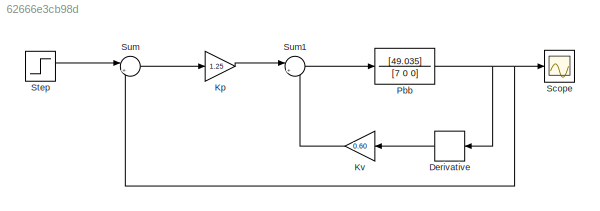
MODEL slx_62666e3cb98d
KIND model
CONFIG AbsTol = auto
CONFIG EnableMultiTasking = off
CONFIG FixedStep = auto
CONFIG MaxStep = auto
CONFIG MinStep = auto
CONFIG RelTol = 1e-3
CONFIG SampleTimeConstraint = Unconstrained
CONFIG SolverName = VariableStepAuto
CONFIG StartTime = 0.0
CONFIG StopTime = 10.0
BLOCK [Derivative] Derivative
BLOCK [Gain] Kp
  Gain = 1.25
BLOCK [Gain] Kv
  Gain = 0.60
BLOCK [TransferFcn] Pbb
  Denominator = [7 0 0]
  Numerator = [49.035]
BLOCK [Scope] Scope
  Floating = off
  NumInputPorts = 1
  Ports = [1]
  ScopeSpecificationString = Simulink.scopes.TimeScopeBlockCfg('CurrentConfiguration', extmgr.ConfigurationSet(extmgr.Configuration('Core','General UI',true),extmgr.Configuration('Core','Source UI',true),extmgr.Configuration('Sources','WiredSimulink',true),extmgr.Configuration('Visuals','Time Domain',true,'SerializedDisplays',{struct('MinYLimReal','-0.12632','MaxYLimReal','1.13692','YLabelReal','','MinYLimMag','0.00000','MaxY...<+1349ch>
BLOCK [Step] Step
  SampleTime = 0
BLOCK [Sum] Sum
  Inputs = |+-
  Ports = [2, 1]
BLOCK [Sum] Sum1
  Inputs = |+-
  Ports = [2, 1]
LINE Derivative:1 -> Kv:1
LINE Kp:1 -> Sum1:1
LINE Kv:1 -> Sum1:2
NET Pbb:1 -> Derivative:1, Scope:1, Sum:2
LINE Step:1 -> Sum:1
LINE Sum1:1 -> Pbb:1
LINE Sum:1 -> Kp:1
note: NET lines group one-source signal fan-out (src -> all destinations, sorted); 1:1 wires keep LINE
